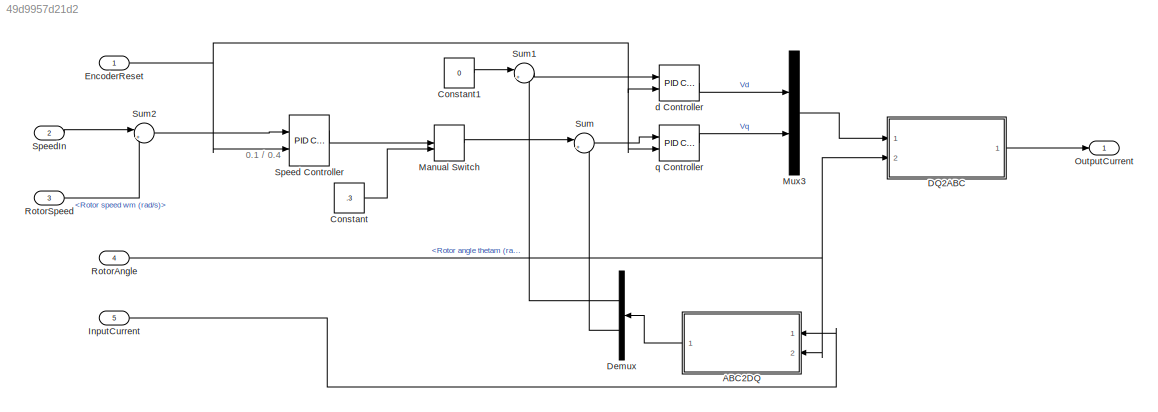
MODEL slx_49d9957d21d2
KIND model
CONFIG AbsTol = auto
CONFIG EnableMultiTasking = off
CONFIG FixedStep = 0.001
CONFIG MaxStep = auto
CONFIG MinStep = auto
CONFIG RelTol = 1e-3
CONFIG SampleTimeConstraint = Unconstrained
CONFIG SolverName = FixedStepDiscrete
CONFIG StartTime = 0.0
CONFIG StopTime = 0.2
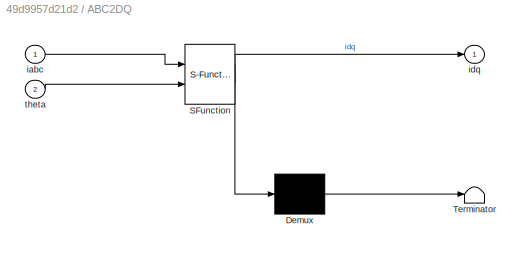
BLOCK [SubSystem] ABC2DQ
  ErrorFcn = Stateflow.Translate.translate
  NameLocation = top
  PermitHierarchicalResolution = ExplicitOnly
  Ports = [2, 1]
  RequestExecContextInheritance = off
  SFBlockType = MATLAB Function
  TreatAsAtomicUnit = on
BLOCK [Demux] ABC2DQ/ Demux 
  Outputs = 1
  Ports = [1, 1]
BLOCK [S-Function] ABC2DQ/ SFunction 
  EnableBusSupport = off
  FunctionName = sf_sfun
  PortCounts = [2 2]
  Ports = [2, 2]
  SFcnIsStateOwnerBlock = off
  SFunctionDeploymentMode = off
  Tag = Stateflow S-Function 2
BLOCK [Terminator] ABC2DQ/ Terminator 
BLOCK [Inport] ABC2DQ/iabc
BLOCK [Outport] ABC2DQ/idq
  VectorParamsAs1DForOutWhenUnconnected = off
BLOCK [Inport] ABC2DQ/theta
  Port = 2
BLOCK [Constant] Constant
  Value = .3
BLOCK [Constant] Constant1
  OutDataTypeStr = single
  Value = 0
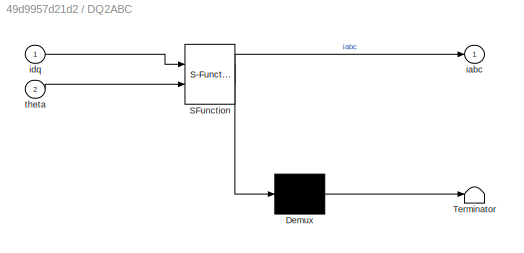
BLOCK [SubSystem] DQ2ABC
  ErrorFcn = Stateflow.Translate.translate
  PermitHierarchicalResolution = ExplicitOnly
  Ports = [2, 1]
  RequestExecContextInheritance = off
  SFBlockType = MATLAB Function
  TreatAsAtomicUnit = on
BLOCK [Demux] DQ2ABC/ Demux 
  Outputs = 1
  Ports = [1, 1]
BLOCK [S-Function] DQ2ABC/ SFunction 
  EnableBusSupport = off
  FunctionName = sf_sfun
  PortCounts = [2 2]
  Ports = [2, 2]
  SFcnIsStateOwnerBlock = off
  SFunctionDeploymentMode = off
  Tag = Stateflow S-Function 1
BLOCK [Terminator] DQ2ABC/ Terminator 
BLOCK [Outport] DQ2ABC/iabc
  VectorParamsAs1DForOutWhenUnconnected = off
BLOCK [Inport] DQ2ABC/idq
BLOCK [Inport] DQ2ABC/theta
  Port = 2
BLOCK [Demux] Demux
  NameLocation = top
  Outputs = 2
  Ports = [1, 2]
BLOCK [Inport] EncoderReset
  OutDataTypeStr = boolean
BLOCK [Inport] InputCurrent
  OutDataTypeStr = single
  Port = 5
  PortDimensions = 3
BLOCK [ManualSwitch] Manual Switch
BLOCK [Mux] Mux3
  DisplayOption = bar
  Inputs = 2
  Ports = [2, 1]
BLOCK [Outport] OutputCurrent
  OutDataTypeStr = single
  VectorParamsAs1DForOutWhenUnconnected = off
BLOCK [Inport] RotorAngle
  OutDataTypeStr = single
  Port = 4
  PortDimensions = 1
BLOCK [Inport] RotorSpeed
  Interpolate = off
  Port = 3
  PortDimensions = 1
BLOCK [Reference] Speed Controller  REF=slpidlib/PID Controller
  Ports = [2, 1]
  SourceBlock = slpidlib/PID Controller
  SourceProductBaseCode = SL
  SourceType = PID 1dof
BLOCK [Inport] SpeedIn
  Interpolate = off
  OutDataTypeStr = single
  Port = 2
  PortDimensions = 1
BLOCK [Sum] Sum
  Inputs = |+-
  Ports = [2, 1]
BLOCK [Sum] Sum1
  Inputs = |+-
  Ports = [2, 1]
BLOCK [Sum] Sum2
  InputSameDT = on
  Inputs = |+-
  Ports = [2, 1]
BLOCK [Reference] d Controller  REF=slpidlib/PID Controller
  NameLocation = top
  Ports = [2, 1]
  SourceBlock = slpidlib/PID Controller
  SourceProductBaseCode = SL
  SourceType = PID 1dof
BLOCK [Reference] q Controller  REF=slpidlib/PID Controller
  Ports = [2, 1]
  SourceBlock = slpidlib/PID Controller
  SourceProductBaseCode = SL
  SourceType = PID 1dof
ANNOTATION (root): 0.1 / 0.4
LINE ABC2DQ:1 -> Demux:1
LINE Constant1:1 -> Sum1:1
LINE Constant:1 -> Manual Switch:2
LINE DQ2ABC:1 -> OutputCurrent:1
LINE Demux:1 -> Sum1:2
LINE Demux:2 -> Sum:2
NET EncoderReset:1 -> Speed Controller:2, d Controller:2, q Controller:2
LINE InputCurrent:1 -> ABC2DQ:1
LINE Manual Switch:1 -> Sum:1
LINE Mux3:1 -> DQ2ABC:1
NET RotorAngle:1 -> ABC2DQ:2, DQ2ABC:2
LINE RotorSpeed:1 -> Sum2:2
LINE Speed Controller:1 -> Manual Switch:1
LINE SpeedIn:1 -> Sum2:1
LINE Sum1:1 -> d Controller:1
LINE Sum2:1 -> Speed Controller:1
LINE Sum:1 -> q Controller:1
LINE d Controller:1 -> Mux3:1
LINE q Controller:1 -> Mux3:2
note: NET lines group one-source signal fan-out (src -> all destinations, sorted); 1:1 wires keep LINE
CHART ABC2DQ states=1 transitions=1
  STATE_LABEL 'eML_blk_kernel()'
  STATE_LABEL "SCRIPT:\nfunction idq = ABC2DQ(iabc,theta)\n\nT = 2/3 * [cos(cast(theta,'single')) cos(cast(theta-2*pi/3,'single')) cos(cast(theta+2*pi/3,'single'));...\n    -sin(cast(theta,'single')) -sin(cast(theta-2*pi/3,'single')) -sin(cast(theta+2*pi/3,'single'))];\n\nidq = T*iabc;"
CHART DQ2ABC states=1 transitions=1
  STATE_LABEL 'eML_blk_kernel()'
  STATE_LABEL "SCRIPT:\nfunction iabc = ABC2DQ(idq,theta)\n\nT = [cos(cast(theta,'single')) -sin(cast(theta,'single'));...\n    cos(cast(theta-2*pi/3,'single'))  -sin(cast(theta-2*pi/3,'single'));...\n    cos(cast(theta+2*pi/3,'single')) -sin(cast(theta+2*pi/3,'single'))];\n\niabc = T*idq;"
CHART  states=0 transitions=0
CHART  states=0 transitions=0
